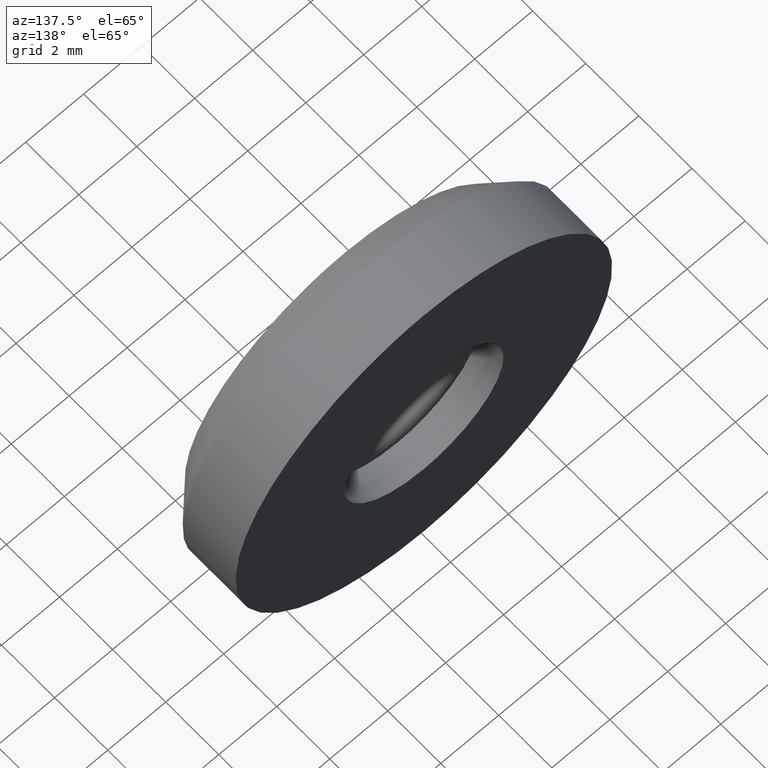
[diagram: clean part render]
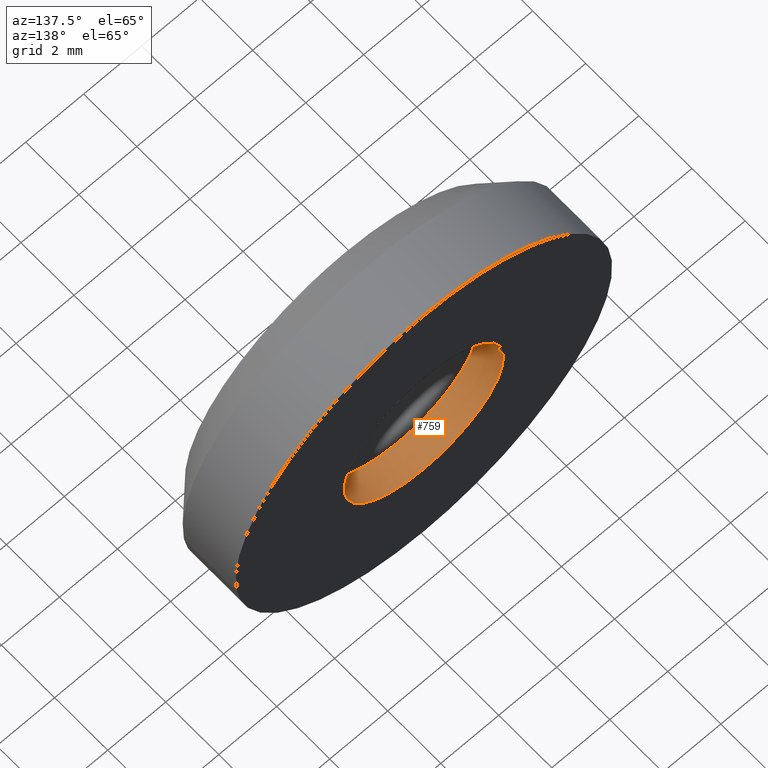
[diagram: same view with one face highlighted and labeled with its STEP entity id]
A machine part, auxiliary view. The second image highlights one B-rep face of the part: STEP entity #759.
In plain terms, the highlighted face is a freeform B-spline surface patch.
Its self-contained STEP definition (entity closure, byte-faithful):
#596=CARTESIAN_POINT('',(2.730776319682042,-1.124946E-014,-0.324593117398889));
#597=VERTEX_POINT('',#596);
#615=CARTESIAN_POINT('',(-2.744870927625979,6.940802E-014,0.167879691026804));
#616=VERTEX_POINT('',#615);
#630=CARTESIAN_POINT('',(-2.744870924766029,1.0,0.167879737788683));
#631=VERTEX_POINT('',#630);
#632=CARTESIAN_POINT('',(-2.744870924766029,1.0,0.167879737788683));
#633=CARTESIAN_POINT('',(-2.744870927625979,6.940802E-014,0.167879691026804));
#634=QUASI_UNIFORM_CURVE('',1,(#632,#633),.UNSPECIFIED.,.F.,.U.);
#635=EDGE_CURVE('',#631,#616,#634,.T.);
#652=CARTESIAN_POINT('',(2.730776318172569,1.0,-0.324593130098012));
#653=VERTEX_POINT('',#652);
#669=CARTESIAN_POINT('',(2.730776318172569,1.0,-0.324593130098012));
#670=CARTESIAN_POINT('',(2.730776319682042,-1.124946E-014,-0.324593117398889));
#671=QUASI_UNIFORM_CURVE('',1,(#669,#670),.UNSPECIFIED.,.F.,.U.);
#672=EDGE_CURVE('',#653,#597,#671,.T.);
#677=CARTESIAN_POINT('',(-2.744870695660133,1.025000000000000,0.167883483720857));
#678=CARTESIAN_POINT('',(-2.912754179380989,1.025000000000000,-2.576987211939278));
#679=CARTESIAN_POINT('',(-0.167883483720856,1.025000000000000,-2.744870695660134));
#680=CARTESIAN_POINT('',(2.424244599808629,1.025000000000000,-2.903412041014450));
#681=CARTESIAN_POINT('',(2.730776197500084,1.025000000000000,-0.324594145306086));
#682=CARTESIAN_POINT('',(-2.744870695660133,-0.025625000000000,0.167883483720857));
#683=CARTESIAN_POINT('',(-2.912754179380989,-0.025625000000000,-2.576987211939278));
#684=CARTESIAN_POINT('',(-0.167883483720856,-0.025625000000000,-2.744870695660134));
#685=CARTESIAN_POINT('',(2.424244599808629,-0.025625000000000,-2.903412041014450));
#686=CARTESIAN_POINT('',(2.730776197500084,-0.025625000000000,-0.324594145306086));
#694=(BOUNDED_SURFACE()B_SPLINE_SURFACE(2,1,((#677,#682),(#678,#683),(#679,#684),(#680,#685),(#681,#686)),.UNSPECIFIED.,.F.,.F.,.U.)B_SPLINE_SURFACE_WITH_KNOTS((3,2,3),(2,2),(0.0,4.556349186104045,8.930444404763927),(0.0,1.0),.UNSPECIFIED.)GEOMETRIC_REPRESENTATION_ITEM()RATIONAL_B_SPLINE_SURFACE(((1.0,1.0),(0.707106781186548,0.707106781186548),(1.0,1.0),(0.718822509939086,0.718822509939086),(0.977505800795127,0.977505800795127)))REPRESENTATION_ITEM('')SURFACE());
#695=CARTESIAN_POINT('',(4.898425E-016,0.0,-2.750000000000000));
#696=VERTEX_POINT('',#695);
#697=CARTESIAN_POINT('',(4.898425E-016,0.0,-2.750000000000000));
#698=CARTESIAN_POINT('',(2.442480872226521,0.0,-2.749999999999999));
#699=CARTESIAN_POINT('',(2.730776319682042,-1.124946E-014,-0.324593117398889));
#707=(BOUNDED_CURVE()B_SPLINE_CURVE(2,(#697,#698,#699),.UNSPECIFIED.,.F.,.U.)B_SPLINE_CURVE_WITH_KNOTS((3,3),(0.0,0.229562537131132),.UNSPECIFIED.)CURVE()GEOMETRIC_REPRESENTATION_ITEM()RATIONAL_B_SPLINE_CURVE((1.0,0.731050758322720,0.956026878876884))REPRESENTATION_ITEM(''));
#708=EDGE_CURVE('',#696,#597,#707,.T.);
#709=ORIENTED_EDGE('',*,*,#708,.T.);
#710=ORIENTED_EDGE('',*,*,#672,.F.);
#711=CARTESIAN_POINT('',(4.898425E-016,1.0,-2.750000000000000));
#712=VERTEX_POINT('',#711);
#713=CARTESIAN_POINT('',(4.898425E-016,1.0,-2.750000000000000));
#714=CARTESIAN_POINT('',(2.442480860788119,1.0,-2.750000000000000));
#715=CARTESIAN_POINT('',(2.730776318172569,1.0,-0.324593130098012));
#723=(BOUNDED_CURVE()B_SPLINE_CURVE(2,(#713,#714,#715),.UNSPECIFIED.,.F.,.U.)B_SPLINE_CURVE_WITH_KNOTS((3,3),(0.0,0.229562536345204),.UNSPECIFIED.)CURVE()GEOMETRIC_REPRESENTATION_ITEM()RATIONAL_B_SPLINE_CURVE((1.0,0.731050759243492,0.956026877336432))REPRESENTATION_ITEM(''));
#724=EDGE_CURVE('',#712,#653,#723,.T.);
#725=ORIENTED_EDGE('',*,*,#724,.F.);
#726=CARTESIAN_POINT('',(-2.744870924766029,1.0,0.167879737788683));
#727=CARTESIAN_POINT('',(-2.750000000000000,1.0,0.084018220853614));
#728=CARTESIAN_POINT('',(-2.750000000000000,1.0,0.0));
#729=CARTESIAN_POINT('',(-2.749999999999999,1.0,-2.750000000000000));
#730=CARTESIAN_POINT('',(4.898425E-016,1.0,-2.750000000000000));
#738=(BOUNDED_CURVE()B_SPLINE_CURVE(2,(#726,#727,#728,#729,#730),.UNSPECIFIED.,.F.,.U.)B_SPLINE_CURVE_WITH_KNOTS((3,2,3),(0.739333197717062,0.750000000000000,1.0),.UNSPECIFIED.)CURVE()GEOMETRIC_REPRESENTATION_ITEM()RATIONAL_B_SPLINE_CURVE((0.976072546341672,0.987503063779615,1.0,0.707106781186548,1.0))REPRESENTATION_ITEM(''));
#739=EDGE_CURVE('',#631,#712,#738,.T.);
#740=ORIENTED_EDGE('',*,*,#739,.F.);
#741=ORIENTED_EDGE('',*,*,#635,.T.);
#742=CARTESIAN_POINT('',(-2.744870927625979,6.940802E-014,0.167879691026804));
#743=CARTESIAN_POINT('',(-2.750000000000000,0.0,0.084018197407122));
#744=CARTESIAN_POINT('',(-2.750000000000000,0.0,0.0));
#745=CARTESIAN_POINT('',(-2.749999999999999,0.0,-2.750000000000000));
#746=CARTESIAN_POINT('',(4.898425E-016,0.0,-2.750000000000000));
#754=(BOUNDED_CURVE()B_SPLINE_CURVE(2,(#742,#743,#744,#745,#746),.UNSPECIFIED.,.F.,.U.)B_SPLINE_CURVE_WITH_KNOTS((3,2,3),(0.739333200656587,0.750000000000000,1.0),.UNSPECIFIED.)CURVE()GEOMETRIC_REPRESENTATION_ITEM()RATIONAL_B_SPLINE_CURVE((0.976072552641646,0.987503067223482,1.0,0.707106781186548,1.0))REPRESENTATION_ITEM(''));
#755=EDGE_CURVE('',#616,#696,#754,.T.);
#756=ORIENTED_EDGE('',*,*,#755,.T.);
#757=EDGE_LOOP('',(#709,#710,#725,#740,#741,#756));
#758=FACE_OUTER_BOUND('',#757,.T.);
#759=ADVANCED_FACE('',(#758),#694,.F.);